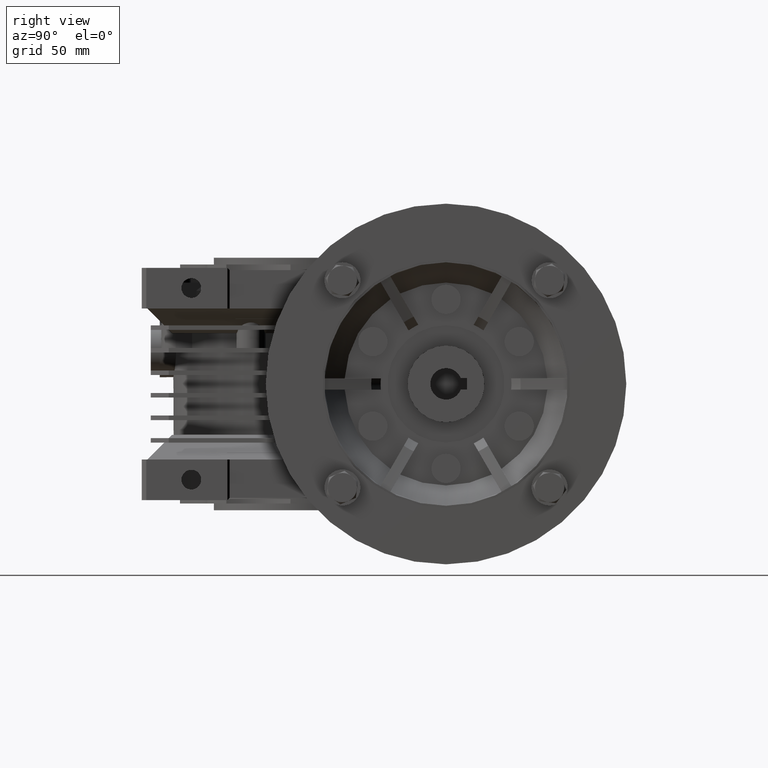
[diagram: clean part render]
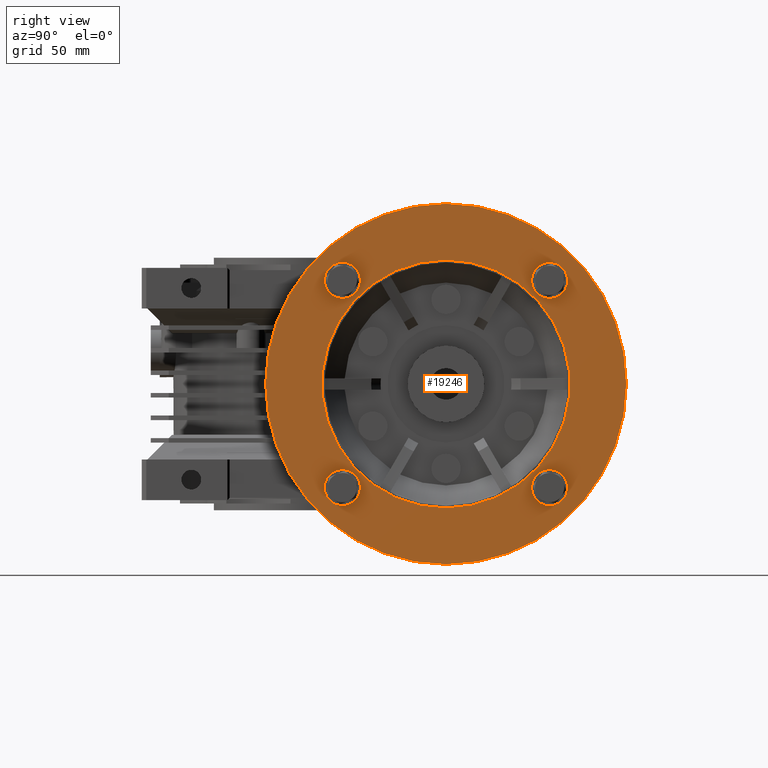
[diagram: same view with one face highlighted and labeled with its STEP entity id]
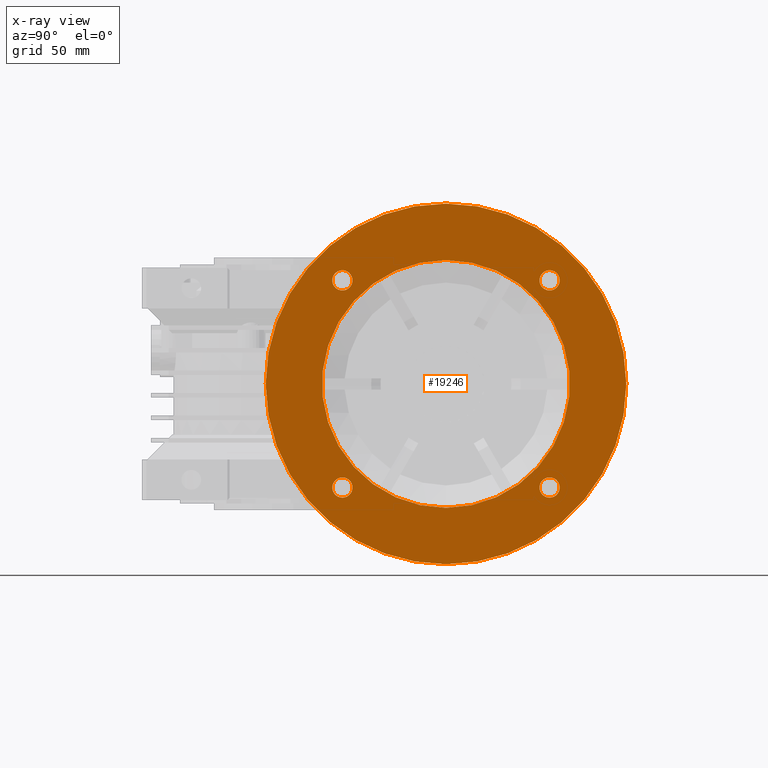
[diagram: x-ray of the same camera — body ghosted, the highlighted face saturated]
A machine part, right view. The second image highlights one B-rep face of the part: STEP entity #19246.
The next image is the same camera in x-ray: the body ghosted, the highlighted face saturated — about 0% of this face is hidden behind the body in this view.
In plain terms, the highlighted planar face has unit normal (-1, 0, 0).
Its self-contained STEP definition (entity closure, byte-faithful):
#100 = CARTESIAN_POINT ( 'NONE',  ( 95.00000000000000000, 108.9619407771230897, 45.96194077712550552 ) ) ;
#153 = CIRCLE ( 'NONE', #17320, 4.499999999999344524 ) ;
#176 = ORIENTED_EDGE ( 'NONE', *, *, #3034, .F. ) ;
#434 = AXIS2_PLACEMENT_3D ( 'NONE', #22238, #6915, #10554 ) ;
#913 = DIRECTION ( 'NONE',  ( 1.000000000000000000, 0.000000000000000000, 0.000000000000000000 ) ) ;
#1361 = DIRECTION ( 'NONE',  ( 1.000000000000000000, 0.000000000000000000, 0.000000000000000000 ) ) ;
#1916 = DIRECTION ( 'NONE',  ( 0.000000000000000000, 0.000000000000000000, 1.000000000000000000 ) ) ;
#2149 = EDGE_CURVE ( 'NONE', #30264, #27213, #12807, .T. ) ;
#2199 = VERTEX_POINT ( 'NONE', #42003 ) ;
#2355 = CARTESIAN_POINT ( 'NONE',  ( 95.00000000000000000, 63.00000000000000000, 55.00000000000000000 ) ) ;
#3034 = EDGE_CURVE ( 'NONE', #48063, #2199, #29926, .T. ) ;
#3341 = CIRCLE ( 'NONE', #46868, 55.00000000000000000 ) ;
#3448 = CARTESIAN_POINT ( 'NONE',  ( 95.00000000000000000, 108.9619407771230897, 41.46194077712276282 ) ) ;
#3641 = VERTEX_POINT ( 'NONE', #2355 ) ;
#3772 = ORIENTED_EDGE ( 'NONE', *, *, #2149, .F. ) ;
#3828 = CARTESIAN_POINT ( 'NONE',  ( 95.00000000000000000, 17.03805922287429553, -45.96194077712810611 ) ) ;
#4571 = CARTESIAN_POINT ( 'NONE',  ( 95.00000000000000000, 17.03805922287189745, 45.96194077712310389 ) ) ;
#4702 = VERTEX_POINT ( 'NONE', #16035 ) ;
#5014 = AXIS2_PLACEMENT_3D ( 'NONE', #19622, #1361, #7908 ) ;
#5387 = CARTESIAN_POINT ( 'NONE',  ( 95.00000000000000000, 108.9619407771230897, 50.46194077712824111 ) ) ;
#5411 = CARTESIAN_POINT ( 'NONE',  ( 95.00000000000000000, 108.9619407771255055, -50.46194077712569737 ) ) ;
#5886 = EDGE_LOOP ( 'NONE', ( #42831, #40819 ) ) ;
#6245 = DIRECTION ( 'NONE',  ( 0.000000000000000000, 0.000000000000000000, -1.000000000000000000 ) ) ;
#6885 = EDGE_CURVE ( 'NONE', #45225, #21094, #16336, .T. ) ;
#6915 = DIRECTION ( 'NONE',  ( -1.000000000000000000, 0.000000000000000000, 0.000000000000000000 ) ) ;
#7092 = AXIS2_PLACEMENT_3D ( 'NONE', #24706, #17144, #9565 ) ;
#7367 = FACE_BOUND ( 'NONE', #44293, .T. ) ;
#7491 = EDGE_CURVE ( 'NONE', #40354, #8610, #14052, .T. ) ;
#7761 = CARTESIAN_POINT ( 'NONE',  ( 95.00000000000000000, 17.03805922287189745, 45.96194077712310389 ) ) ;
#7908 = DIRECTION ( 'NONE',  ( 0.000000000000000000, 0.000000000000000000, -1.000000000000000000 ) ) ;
#8368 = ORIENTED_EDGE ( 'NONE', *, *, #38979, .F. ) ;
#8610 = VERTEX_POINT ( 'NONE', #32093 ) ;
#9119 = CARTESIAN_POINT ( 'NONE',  ( 95.00000000000000000, 108.9619407771255055, -45.96194077712570447 ) ) ;
#9376 = DIRECTION ( 'NONE',  ( 1.000000000000000000, 0.000000000000000000, 0.000000000000000000 ) ) ;
#9565 = DIRECTION ( 'NONE',  ( 0.000000000000000000, 0.000000000000000000, 1.000000000000000000 ) ) ;
#10554 = DIRECTION ( 'NONE',  ( 0.000000000000000000, 0.000000000000000000, 1.000000000000000000 ) ) ;
#10781 = FACE_BOUND ( 'NONE', #30136, .T. ) ;
#11388 = DIRECTION ( 'NONE',  ( 0.000000000000000000, 0.000000000000000000, -1.000000000000000000 ) ) ;
#11959 = CIRCLE ( 'NONE', #15052, 55.00000000000000000 ) ;
#12289 = DIRECTION ( 'NONE',  ( 1.000000000000000000, 0.000000000000000000, 0.000000000000000000 ) ) ;
#12298 = CARTESIAN_POINT ( 'NONE',  ( 95.00000000000000000, 63.00000000000000000, 0.000000000000000000 ) ) ;
#12807 = CIRCLE ( 'NONE', #42441, 4.500000000002738254 ) ;
#13281 = AXIS2_PLACEMENT_3D ( 'NONE', #28291, #36620, #36376 ) ;
#14052 = CIRCLE ( 'NONE', #13281, 80.00000000000000000 ) ;
#14590 = ORIENTED_EDGE ( 'NONE', *, *, #7491, .F. ) ;
#14880 = ORIENTED_EDGE ( 'NONE', *, *, #47349, .F. ) ;
#15052 = AXIS2_PLACEMENT_3D ( 'NONE', #27736, #38220, #1916 ) ;
#15431 = DIRECTION ( 'NONE',  ( 1.000000000000000000, 0.000000000000000000, 0.000000000000000000 ) ) ;
#16006 = EDGE_LOOP ( 'NONE', ( #23628, #14590 ) ) ;
#16035 = CARTESIAN_POINT ( 'NONE',  ( 95.00000000000000000, 63.00000000000000000, -55.00000000000000000 ) ) ;
#16113 = AXIS2_PLACEMENT_3D ( 'NONE', #41267, #15431, #23479 ) ;
#16309 = EDGE_CURVE ( 'NONE', #21094, #45225, #153, .T. ) ;
#16336 = CIRCLE ( 'NONE', #21850, 4.499999999999344524 ) ;
#17144 = DIRECTION ( 'NONE',  ( -1.000000000000000000, 0.000000000000000000, 0.000000000000000000 ) ) ;
#17320 = AXIS2_PLACEMENT_3D ( 'NONE', #25494, #32604, #6245 ) ;
#18704 = DIRECTION ( 'NONE',  ( 1.000000000000000000, 0.000000000000000000, 0.000000000000000000 ) ) ;
#18946 = DIRECTION ( 'NONE',  ( 0.000000000000000000, 0.000000000000000000, -1.000000000000000000 ) ) ;
#19246 = ADVANCED_FACE ( 'NONE', ( #37119, #29083, #22470, #10781, #7367, #37353 ), #40076, .F. ) ;
#19622 = CARTESIAN_POINT ( 'NONE',  ( 95.00000000000000000, 108.9619407771255055, -45.96194077712570447 ) ) ;
#20359 = DIRECTION ( 'NONE',  ( 0.000000000000000000, 0.000000000000000000, -1.000000000000000000 ) ) ;
#20480 = EDGE_CURVE ( 'NONE', #8610, #40354, #35923, .T. ) ;
#21094 = VERTEX_POINT ( 'NONE', #27426 ) ;
#21175 = CARTESIAN_POINT ( 'NONE',  ( 95.00000000000000000, 108.9619407771255055, -41.46194077712570447 ) ) ;
#21850 = AXIS2_PLACEMENT_3D ( 'NONE', #3828, #18704, #18946 ) ;
#22238 = CARTESIAN_POINT ( 'NONE',  ( 95.00000000000000000, 143.0000000000000284, 0.000000000000000000 ) ) ;
#22470 = FACE_BOUND ( 'NONE', #24489, .T. ) ;
#23479 = DIRECTION ( 'NONE',  ( 0.000000000000000000, 0.000000000000000000, -1.000000000000000000 ) ) ;
#23628 = ORIENTED_EDGE ( 'NONE', *, *, #20480, .F. ) ;
#24082 = VERTEX_POINT ( 'NONE', #21175 ) ;
#24489 = EDGE_LOOP ( 'NONE', ( #27967, #31654 ) ) ;
#24706 = CARTESIAN_POINT ( 'NONE',  ( 95.00000000000000000, 63.00000000000000000, 0.000000000000000000 ) ) ;
#24815 = CARTESIAN_POINT ( 'NONE',  ( 95.00000000000000000, 17.03805922287429553, -50.46194077712745241 ) ) ;
#25306 = AXIS2_PLACEMENT_3D ( 'NONE', #7761, #29713, #33414 ) ;
#25453 = CIRCLE ( 'NONE', #34820, 4.499999999999997335 ) ;
#25494 = CARTESIAN_POINT ( 'NONE',  ( 95.00000000000000000, 17.03805922287429553, -45.96194077712810611 ) ) ;
#25703 = DIRECTION ( 'NONE',  ( 1.000000000000000000, 0.000000000000000000, 0.000000000000000000 ) ) ;
#25787 = ORIENTED_EDGE ( 'NONE', *, *, #43782, .F. ) ;
#27213 = VERTEX_POINT ( 'NONE', #3448 ) ;
#27426 = CARTESIAN_POINT ( 'NONE',  ( 95.00000000000000000, 17.03805922287429553, -41.46194077712875981 ) ) ;
#27736 = CARTESIAN_POINT ( 'NONE',  ( 95.00000000000000000, 63.00000000000000000, 0.000000000000000000 ) ) ;
#27967 = ORIENTED_EDGE ( 'NONE', *, *, #6885, .F. ) ;
#28291 = CARTESIAN_POINT ( 'NONE',  ( 95.00000000000000000, 63.00000000000000000, 0.000000000000000000 ) ) ;
#29083 = FACE_BOUND ( 'NONE', #34256, .T. ) ;
#29713 = DIRECTION ( 'NONE',  ( 1.000000000000000000, 0.000000000000000000, 0.000000000000000000 ) ) ;
#29926 = CIRCLE ( 'NONE', #25306, 4.500000000001877609 ) ;
#30136 = EDGE_LOOP ( 'NONE', ( #8368, #176 ) ) ;
#30264 = VERTEX_POINT ( 'NONE', #5387 ) ;
#30860 = EDGE_CURVE ( 'NONE', #27213, #30264, #37147, .T. ) ;
#31654 = ORIENTED_EDGE ( 'NONE', *, *, #16309, .F. ) ;
#32093 = CARTESIAN_POINT ( 'NONE',  ( 95.00000000000000000, 63.00000000000000000, 80.00000000000000000 ) ) ;
#32604 = DIRECTION ( 'NONE',  ( 1.000000000000000000, 0.000000000000000000, 0.000000000000000000 ) ) ;
#33414 = DIRECTION ( 'NONE',  ( 0.000000000000000000, 0.000000000000000000, -1.000000000000000000 ) ) ;
#33513 = ORIENTED_EDGE ( 'NONE', *, *, #30860, .F. ) ;
#33713 = CARTESIAN_POINT ( 'NONE',  ( 95.00000000000000000, 63.00000000000001421, -80.00000000000000000 ) ) ;
#34142 = EDGE_CURVE ( 'NONE', #4702, #3641, #3341, .T. ) ;
#34256 = EDGE_LOOP ( 'NONE', ( #14880, #25787 ) ) ;
#34820 = AXIS2_PLACEMENT_3D ( 'NONE', #9119, #12289, #20359 ) ;
#35368 = EDGE_CURVE ( 'NONE', #3641, #4702, #11959, .T. ) ;
#35923 = CIRCLE ( 'NONE', #7092, 80.00000000000000000 ) ;
#36376 = DIRECTION ( 'NONE',  ( 0.000000000000000000, 0.000000000000000000, 1.000000000000000000 ) ) ;
#36620 = DIRECTION ( 'NONE',  ( -1.000000000000000000, 0.000000000000000000, 0.000000000000000000 ) ) ;
#36713 = DIRECTION ( 'NONE',  ( 0.000000000000000000, 0.000000000000000000, -1.000000000000000000 ) ) ;
#37087 = AXIS2_PLACEMENT_3D ( 'NONE', #4571, #913, #11388 ) ;
#37119 = FACE_BOUND ( 'NONE', #5886, .T. ) ;
#37147 = CIRCLE ( 'NONE', #16113, 4.500000000002738254 ) ;
#37353 = FACE_OUTER_BOUND ( 'NONE', #16006, .T. ) ;
#37695 = CIRCLE ( 'NONE', #5014, 4.499999999999997335 ) ;
#38220 = DIRECTION ( 'NONE',  ( 1.000000000000000000, 0.000000000000000000, 0.000000000000000000 ) ) ;
#38979 = EDGE_CURVE ( 'NONE', #2199, #48063, #44080, .T. ) ;
#39140 = DIRECTION ( 'NONE',  ( 0.000000000000000000, 0.000000000000000000, 1.000000000000000000 ) ) ;
#40076 = PLANE ( 'NONE',  #434 ) ;
#40354 = VERTEX_POINT ( 'NONE', #33713 ) ;
#40397 = CARTESIAN_POINT ( 'NONE',  ( 95.00000000000000000, 17.03805922287189745, 50.46194077712497972 ) ) ;
#40819 = ORIENTED_EDGE ( 'NONE', *, *, #34142, .F. ) ;
#40901 = VERTEX_POINT ( 'NONE', #5411 ) ;
#41267 = CARTESIAN_POINT ( 'NONE',  ( 95.00000000000000000, 108.9619407771230897, 45.96194077712550552 ) ) ;
#42003 = CARTESIAN_POINT ( 'NONE',  ( 95.00000000000000000, 17.03805922287189745, 41.46194077712122095 ) ) ;
#42441 = AXIS2_PLACEMENT_3D ( 'NONE', #100, #25703, #36713 ) ;
#42831 = ORIENTED_EDGE ( 'NONE', *, *, #35368, .F. ) ;
#43782 = EDGE_CURVE ( 'NONE', #24082, #40901, #37695, .T. ) ;
#44080 = CIRCLE ( 'NONE', #37087, 4.500000000001877609 ) ;
#44293 = EDGE_LOOP ( 'NONE', ( #33513, #3772 ) ) ;
#45225 = VERTEX_POINT ( 'NONE', #24815 ) ;
#46868 = AXIS2_PLACEMENT_3D ( 'NONE', #12298, #9376, #39140 ) ;
#47349 = EDGE_CURVE ( 'NONE', #40901, #24082, #25453, .T. ) ;
#48063 = VERTEX_POINT ( 'NONE', #40397 ) ;